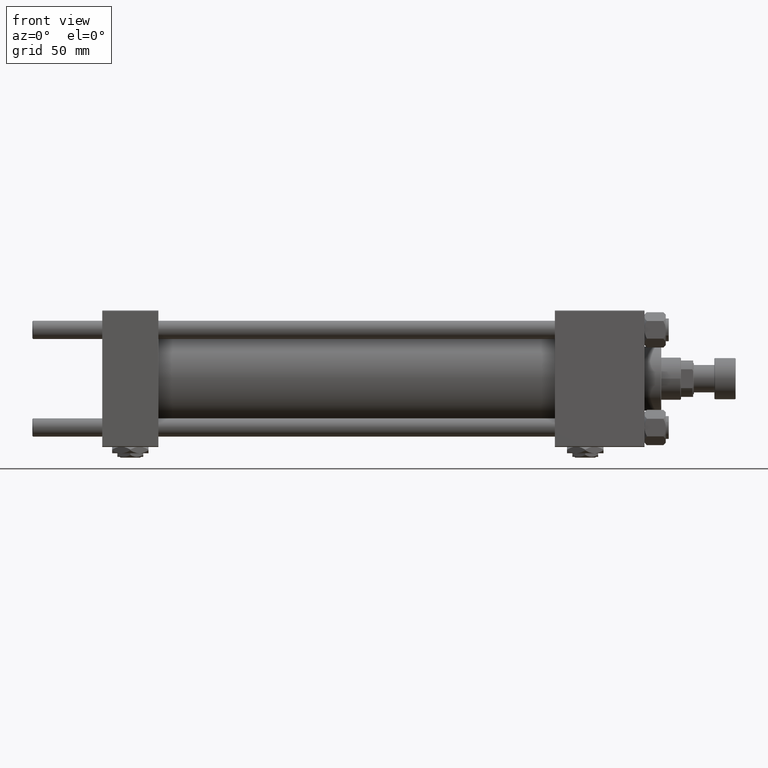
[diagram: clean part render]
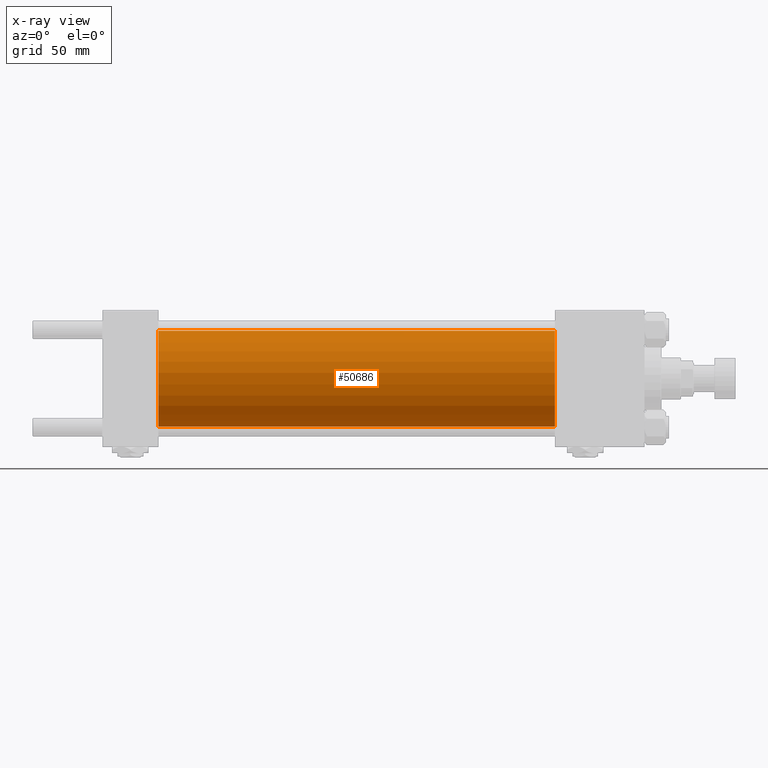
[diagram: x-ray — body ghosted, one internal face saturated and labeled with its STEP entity id]
A machine part, front view, then the same camera in x-ray: the body is ghosted and one INTERNAL B-rep face — a face not visible from any outside direction — is saturated and labeled: STEP entity #50686.
In plain terms, the highlighted cylindrical surface (partial cylindrical patch) has radius 31.5 mm, axis along (-1, -0, -0).
Its self-contained STEP definition (entity closure, byte-faithful):
#2868 = DIRECTION ( 'NONE',  ( 0.000000000000000000, 0.000000000000000000, -1.000000000000000000 ) ) ;
#2913 = DIRECTION ( 'NONE',  ( 1.000000000000000000, 0.000000000000000000, 0.000000000000000000 ) ) ;
#6999 = VERTEX_POINT ( 'NONE', #36416 ) ;
#9808 = EDGE_CURVE ( 'NONE', #12764, #35758, #28207, .T. ) ;
#12179 = AXIS2_PLACEMENT_3D ( 'NONE', #51316, #2913, #42862 ) ;
#12764 = VERTEX_POINT ( 'NONE', #22710 ) ;
#12901 = CARTESIAN_POINT ( 'NONE',  ( 298.0000000000000000, 3.857637417314162689E-15, -31.50000000000000000 ) ) ;
#13262 = ORIENTED_EDGE ( 'NONE', *, *, #14908, .T. ) ;
#14279 = CARTESIAN_POINT ( 'NONE',  ( 298.0000000000000000, 0.000000000000000000, 0.000000000000000000 ) ) ;
#14797 = DIRECTION ( 'NONE',  ( 1.000000000000000000, 0.000000000000000000, 0.000000000000000000 ) ) ;
#14908 = EDGE_CURVE ( 'NONE', #52082, #35758, #37477, .T. ) ;
#18189 = EDGE_LOOP ( 'NONE', ( #27481, #13262, #21751, #34627 ) ) ;
#18936 = AXIS2_PLACEMENT_3D ( 'NONE', #32298, #14797, #2868 ) ;
#21751 = ORIENTED_EDGE ( 'NONE', *, *, #9808, .F. ) ;
#22217 = CYLINDRICAL_SURFACE ( 'NONE', #45461, 31.50000000000000000 ) ;
#22710 = CARTESIAN_POINT ( 'NONE',  ( 37.00000000000000000, 0.000000000000000000, 31.50000000000000000 ) ) ;
#25314 = DIRECTION ( 'NONE',  ( -1.000000000000000000, -0.000000000000000000, -0.000000000000000000 ) ) ;
#25557 = LINE ( 'NONE', #41688, #29069 ) ;
#26930 = CARTESIAN_POINT ( 'NONE',  ( 37.00000000000000000, 3.857637417314162689E-15, -31.50000000000000000 ) ) ;
#27481 = ORIENTED_EDGE ( 'NONE', *, *, #40126, .T. ) ;
#28207 = CIRCLE ( 'NONE', #12179, 31.50000000000000000 ) ;
#29069 = VECTOR ( 'NONE', #42220, 1000.000000000000000 ) ;
#30721 = CIRCLE ( 'NONE', #18936, 31.50000000000000000 ) ;
#31364 = DIRECTION ( 'NONE',  ( -1.000000000000000000, -0.000000000000000000, -0.000000000000000000 ) ) ;
#32298 = CARTESIAN_POINT ( 'NONE',  ( 298.0000000000000000, 0.000000000000000000, 0.000000000000000000 ) ) ;
#34627 = ORIENTED_EDGE ( 'NONE', *, *, #41351, .F. ) ;
#35758 = VERTEX_POINT ( 'NONE', #26930 ) ;
#36416 = CARTESIAN_POINT ( 'NONE',  ( 298.0000000000000000, 0.000000000000000000, 31.50000000000000000 ) ) ;
#37477 = LINE ( 'NONE', #12901, #46961 ) ;
#38683 = CARTESIAN_POINT ( 'NONE',  ( 298.0000000000000000, 3.857637417314162689E-15, -31.50000000000000000 ) ) ;
#40126 = EDGE_CURVE ( 'NONE', #6999, #52082, #30721, .T. ) ;
#41351 = EDGE_CURVE ( 'NONE', #6999, #12764, #25557, .T. ) ;
#41688 = CARTESIAN_POINT ( 'NONE',  ( 298.0000000000000000, 0.000000000000000000, 31.50000000000000000 ) ) ;
#42220 = DIRECTION ( 'NONE',  ( -1.000000000000000000, -0.000000000000000000, -0.000000000000000000 ) ) ;
#42302 = FACE_OUTER_BOUND ( 'NONE', #18189, .T. ) ;
#42862 = DIRECTION ( 'NONE',  ( 0.000000000000000000, 0.000000000000000000, -1.000000000000000000 ) ) ;
#45461 = AXIS2_PLACEMENT_3D ( 'NONE', #14279, #31364, #47508 ) ;
#46961 = VECTOR ( 'NONE', #25314, 1000.000000000000000 ) ;
#47508 = DIRECTION ( 'NONE',  ( 0.000000000000000000, 0.000000000000000000, 1.000000000000000000 ) ) ;
#50686 = ADVANCED_FACE ( 'NONE', ( #42302 ), #22217, .F. ) ;
#51316 = CARTESIAN_POINT ( 'NONE',  ( 37.00000000000000000, 0.000000000000000000, 0.000000000000000000 ) ) ;
#52082 = VERTEX_POINT ( 'NONE', #38683 ) ;